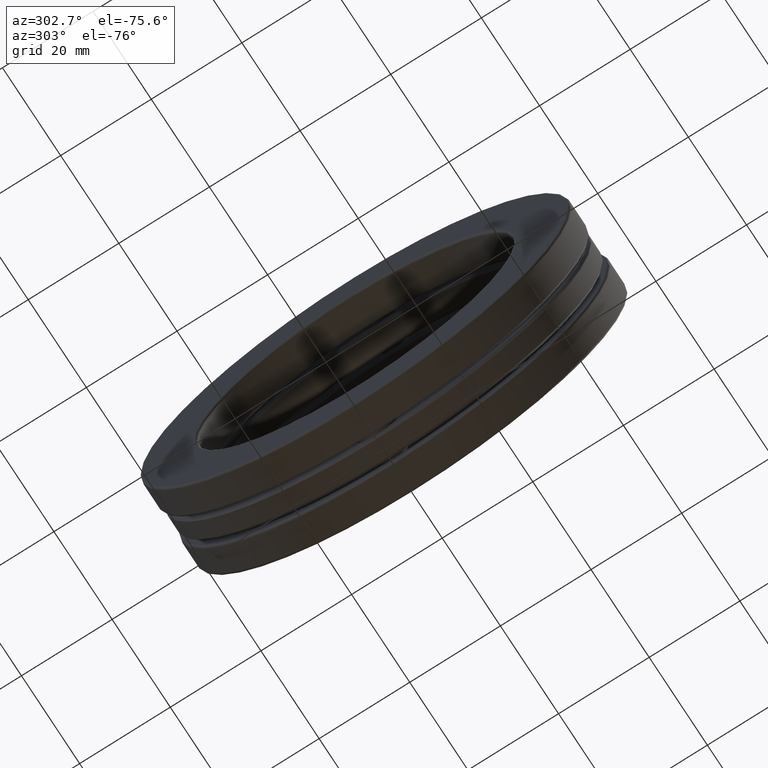
[diagram: clean part render]
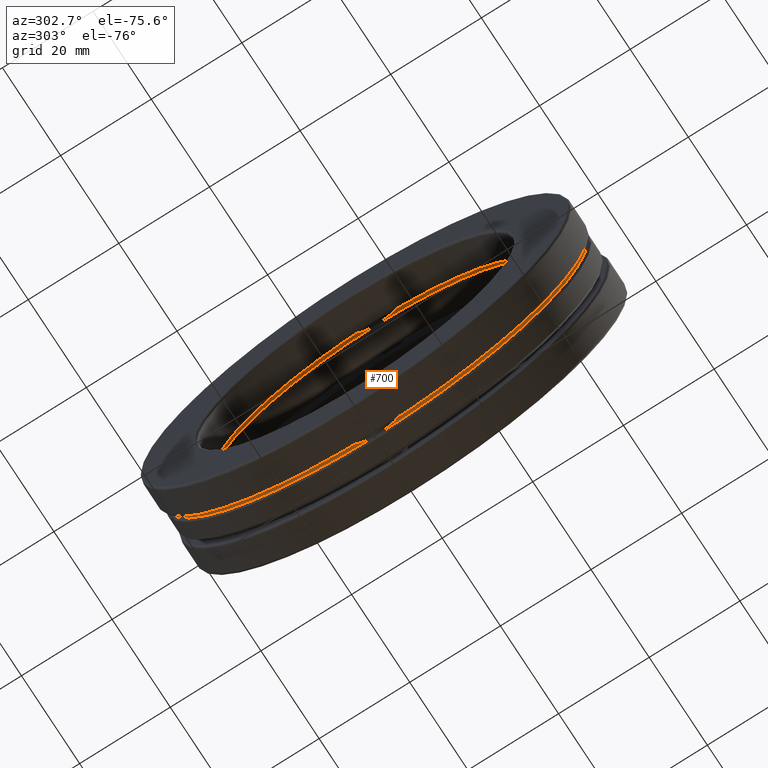
[diagram: same view with one face highlighted and labeled with its STEP entity id]
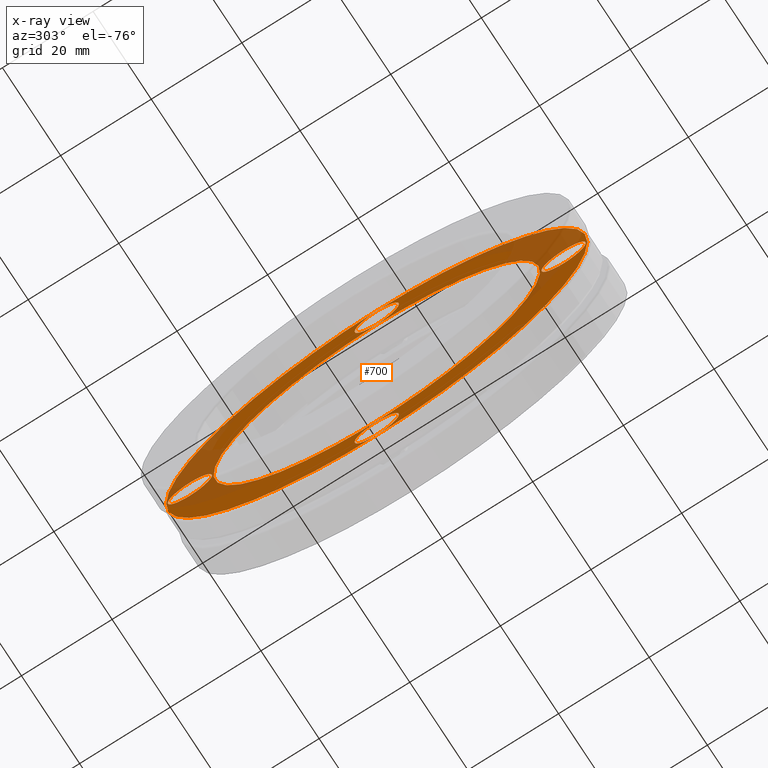
[diagram: x-ray of the same camera — body ghosted, the highlighted face saturated]
A machine part, auxiliary view. The second image highlights one B-rep face of the part: STEP entity #700.
The next image is the same camera in x-ray: the body ghosted, the highlighted face saturated — about 31% of this face is hidden behind the body in this view.
In plain terms, the highlighted planar face has unit normal (1, 0, 0).
Its self-contained STEP definition (entity closure, byte-faithful):
#11 = CARTESIAN_POINT ( 'NONE',  ( -0.09837499999999997600, 1.701049708284374600E-014, 1.623999999999999900 ) ) ;
#21 = EDGE_CURVE ( 'NONE', #286, #286, #718, .T. ) ;
#46 = AXIS2_PLACEMENT_3D ( 'NONE', #436, #119, #639 ) ;
#60 = DIRECTION ( 'NONE',  ( 1.000000000000000000, 0.0000000000000000000, 0.0000000000000000000 ) ) ;
#71 = CARTESIAN_POINT ( 'NONE',  ( -0.09837499999999999000, 0.0000000000000000000, 1.417999999999999900 ) ) ;
#74 = EDGE_CURVE ( 'NONE', #95, #95, #696, .T. ) ;
#77 = DIRECTION ( 'NONE',  ( -1.000000000000000000, -0.0000000000000000000, -0.0000000000000000000 ) ) ;
#84 = FACE_BOUND ( 'NONE', #112, .T. ) ;
#95 = VERTEX_POINT ( 'NONE', #746 ) ;
#112 = EDGE_LOOP ( 'NONE', ( #608 ) ) ;
#119 = DIRECTION ( 'NONE',  ( -1.000000000000000000, -0.0000000000000000000, -0.0000000000000000000 ) ) ;
#131 = CIRCLE ( 'NONE', #46, 0.1925000000000000000 ) ;
#145 = EDGE_LOOP ( 'NONE', ( #365 ) ) ;
#148 = EDGE_CURVE ( 'NONE', #371, #371, #131, .T. ) ;
#161 = CARTESIAN_POINT ( 'NONE',  ( -0.09837499999999997600, 1.623999999999999900, 0.0000000000000000000 ) ) ;
#167 = AXIS2_PLACEMENT_3D ( 'NONE', #701, #60, #379 ) ;
#170 = CARTESIAN_POINT ( 'NONE',  ( -0.09837499999999997600, -1.623999999999999900, 0.0000000000000000000 ) ) ;
#187 = DIRECTION ( 'NONE',  ( 0.0000000000000000000, 1.000000000000000000, -1.135313451912421000E-014 ) ) ;
#188 = FACE_BOUND ( 'NONE', #814, .T. ) ;
#193 = EDGE_CURVE ( 'NONE', #703, #703, #786, .T. ) ;
#199 = AXIS2_PLACEMENT_3D ( 'NONE', #443, #438, #369 ) ;
#214 = ORIENTED_EDGE ( 'NONE', *, *, #74, .T. ) ;
#223 = DIRECTION ( 'NONE',  ( -1.000000000000000000, -0.0000000000000000000, -0.0000000000000000000 ) ) ;
#269 = AXIS2_PLACEMENT_3D ( 'NONE', #161, #223, #288 ) ;
#272 = CIRCLE ( 'NONE', #449, 0.1925000000000000000 ) ;
#279 = EDGE_LOOP ( 'NONE', ( #214 ) ) ;
#286 = VERTEX_POINT ( 'NONE', #375 ) ;
#288 = DIRECTION ( 'NONE',  ( 0.0000000000000000000, 0.0000000000000000000, -1.000000000000000000 ) ) ;
#328 = AXIS2_PLACEMENT_3D ( 'NONE', #11, #654, #187 ) ;
#333 = VERTEX_POINT ( 'NONE', #71 ) ;
#365 = ORIENTED_EDGE ( 'NONE', *, *, #21, .F. ) ;
#369 = DIRECTION ( 'NONE',  ( 0.0000000000000000000, 0.0000000000000000000, 1.000000000000000000 ) ) ;
#371 = VERTEX_POINT ( 'NONE', #776 ) ;
#375 = CARTESIAN_POINT ( 'NONE',  ( -0.09837499999999997600, 1.623999999999999900, -0.1925000000000000000 ) ) ;
#379 = DIRECTION ( 'NONE',  ( 0.0000000000000000000, 0.0000000000000000000, -1.000000000000000000 ) ) ;
#415 = EDGE_CURVE ( 'NONE', #333, #333, #683, .T. ) ;
#434 = FACE_BOUND ( 'NONE', #567, .T. ) ;
#436 = CARTESIAN_POINT ( 'NONE',  ( -0.09837499999999997600, -5.670165694281247900E-015, -1.623999999999999900 ) ) ;
#438 = DIRECTION ( 'NONE',  ( -1.000000000000000000, -0.0000000000000000000, -0.0000000000000000000 ) ) ;
#443 = CARTESIAN_POINT ( 'NONE',  ( -0.09837499999999997600, 0.0000000000000000000, 0.0000000000000000000 ) ) ;
#449 = AXIS2_PLACEMENT_3D ( 'NONE', #170, #623, #492 ) ;
#471 = FACE_OUTER_BOUND ( 'NONE', #279, .T. ) ;
#473 = VERTEX_POINT ( 'NONE', #644 ) ;
#484 = ORIENTED_EDGE ( 'NONE', *, *, #193, .F. ) ;
#492 = DIRECTION ( 'NONE',  ( 0.0000000000000000000, 0.0000000000000000000, 1.000000000000000000 ) ) ;
#510 = FACE_BOUND ( 'NONE', #145, .T. ) ;
#520 = CARTESIAN_POINT ( 'NONE',  ( -0.09837499999999997600, 0.1925000000000169900, 1.623999999999997700 ) ) ;
#532 = EDGE_CURVE ( 'NONE', #473, #473, #272, .T. ) ;
#541 = DIRECTION ( 'NONE',  ( 0.0000000000000000000, 0.0000000000000000000, 1.000000000000000000 ) ) ;
#552 = ORIENTED_EDGE ( 'NONE', *, *, #415, .F. ) ;
#567 = EDGE_LOOP ( 'NONE', ( #484 ) ) ;
#587 = EDGE_LOOP ( 'NONE', ( #552 ) ) ;
#608 = ORIENTED_EDGE ( 'NONE', *, *, #148, .F. ) ;
#610 = AXIS2_PLACEMENT_3D ( 'NONE', #721, #77, #541 ) ;
#623 = DIRECTION ( 'NONE',  ( -1.000000000000000000, -0.0000000000000000000, -0.0000000000000000000 ) ) ;
#639 = DIRECTION ( 'NONE',  ( 0.0000000000000000000, -1.000000000000000000, 4.257425444671579300E-015 ) ) ;
#644 = CARTESIAN_POINT ( 'NONE',  ( -0.09837499999999997600, -1.623999999999999900, 0.1925000000000000000 ) ) ;
#654 = DIRECTION ( 'NONE',  ( -1.000000000000000000, -0.0000000000000000000, -0.0000000000000000000 ) ) ;
#683 = CIRCLE ( 'NONE', #610, 1.417999999999999900 ) ;
#692 = PLANE ( 'NONE',  #167 ) ;
#696 = CIRCLE ( 'NONE', #199, 1.829999999999999600 ) ;
#700 = ADVANCED_FACE ( 'NONE', ( #84, #188, #434, #510, #800, #471 ), #692, .F. ) ;
#701 = CARTESIAN_POINT ( 'NONE',  ( -0.09837499999999997600, 4.076843846734258400E-018, 0.0000000000000000000 ) ) ;
#703 = VERTEX_POINT ( 'NONE', #520 ) ;
#718 = CIRCLE ( 'NONE', #269, 0.1925000000000000000 ) ;
#721 = CARTESIAN_POINT ( 'NONE',  ( -0.09837499999999999000, 0.0000000000000000000, 0.0000000000000000000 ) ) ;
#746 = CARTESIAN_POINT ( 'NONE',  ( -0.09837499999999997600, 0.0000000000000000000, 1.829999999999999600 ) ) ;
#776 = CARTESIAN_POINT ( 'NONE',  ( -0.09837499999999997600, -0.1925000000000056700, -1.623999999999999200 ) ) ;
#786 = CIRCLE ( 'NONE', #328, 0.1925000000000000000 ) ;
#800 = FACE_BOUND ( 'NONE', #587, .T. ) ;
#808 = ORIENTED_EDGE ( 'NONE', *, *, #532, .F. ) ;
#814 = EDGE_LOOP ( 'NONE', ( #808 ) ) ;